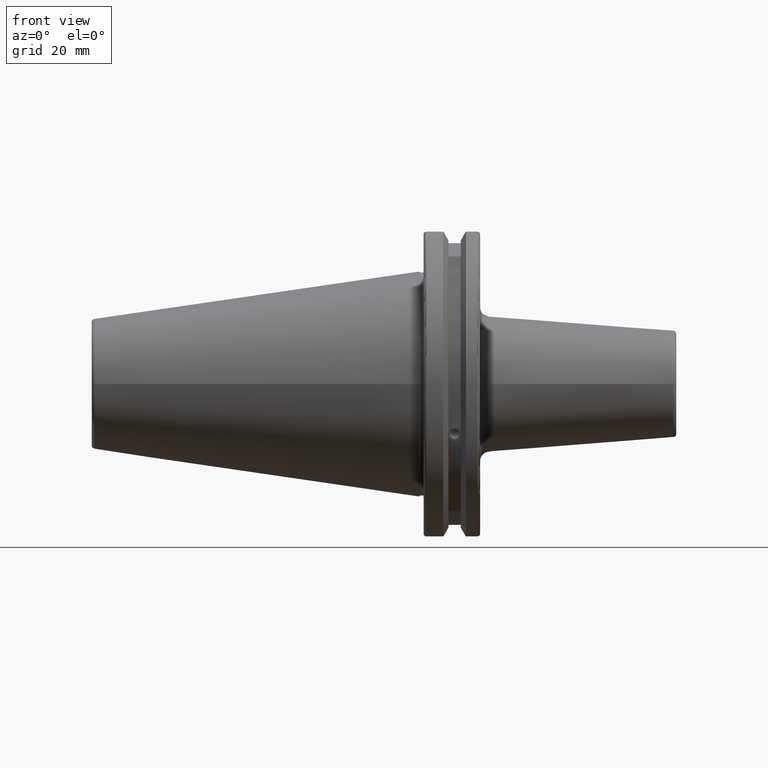
[diagram: clean part render]
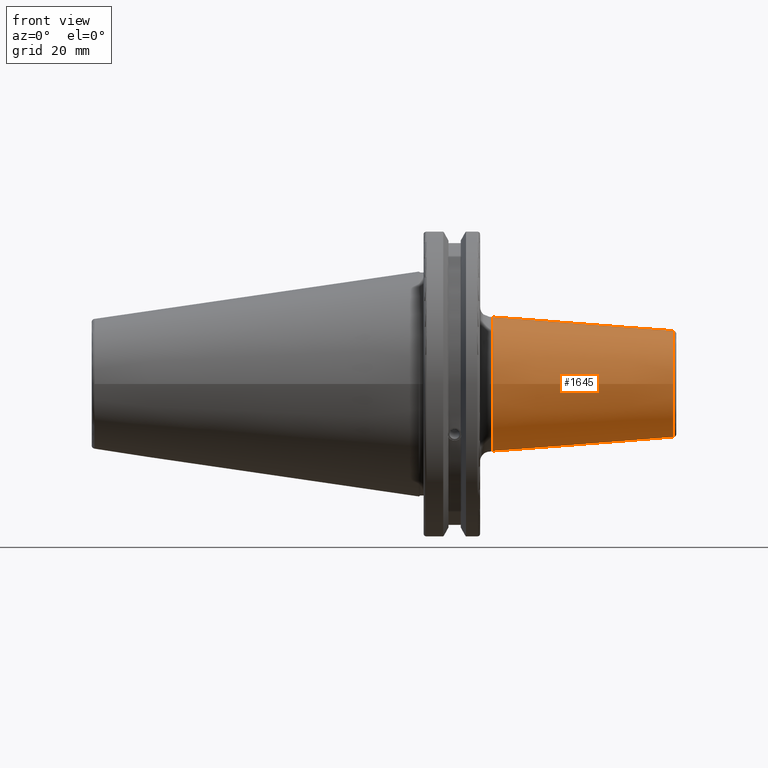
[diagram: same view with one face highlighted and labeled with its STEP entity id]
A machine part, front view. The second image highlights one B-rep face of the part: STEP entity #1645.
In plain terms, the highlighted conical surface has half-angle 4.5 deg.
Its self-contained STEP definition (entity closure, byte-faithful):
#75=CONICAL_SURFACE('',#1764,18.75,0.0785398163397447);
#90=LINE('',#2467,#184);
#184=VECTOR('',#1982,18.75);
#364=FACE_OUTER_BOUND('',#453,.T.);
#453=EDGE_LOOP('',(#1128,#1129,#1130,#1131,#1132,#1133,#1134));
#562=CIRCLE('',#1761,16.5725268420749);
#563=CIRCLE('',#1762,16.5725268420749);
#564=CIRCLE('',#1763,16.5725268420749);
#565=CIRCLE('',#1765,21.);
#566=CIRCLE('',#1766,21.);
#668=VERTEX_POINT('',#2458);
#669=VERTEX_POINT('',#2460);
#670=VERTEX_POINT('',#2462);
#671=VERTEX_POINT('',#2466);
#672=VERTEX_POINT('',#2468);
#855=EDGE_CURVE('',#668,#669,#562,.T.);
#856=EDGE_CURVE('',#669,#670,#563,.T.);
#857=EDGE_CURVE('',#670,#668,#564,.T.);
#858=EDGE_CURVE('',#669,#671,#90,.T.);
#859=EDGE_CURVE('',#671,#672,#565,.T.);
#860=EDGE_CURVE('',#672,#671,#566,.T.);
#1128=ORIENTED_EDGE('',*,*,#857,.F.);
#1129=ORIENTED_EDGE('',*,*,#856,.F.);
#1130=ORIENTED_EDGE('',*,*,#858,.T.);
#1131=ORIENTED_EDGE('',*,*,#859,.T.);
#1132=ORIENTED_EDGE('',*,*,#860,.T.);
#1133=ORIENTED_EDGE('',*,*,#858,.F.);
#1134=ORIENTED_EDGE('',*,*,#855,.F.);
#1645=ADVANCED_FACE('',(#364),#75,.T.);
#1761=AXIS2_PLACEMENT_3D('',#2461,#1974,#1975);
#1762=AXIS2_PLACEMENT_3D('',#2463,#1976,#1977);
#1763=AXIS2_PLACEMENT_3D('',#2464,#1978,#1979);
#1764=AXIS2_PLACEMENT_3D('',#2465,#1980,#1981);
#1765=AXIS2_PLACEMENT_3D('',#2469,#1983,#1984);
#1766=AXIS2_PLACEMENT_3D('',#2470,#1985,#1986);
#1974=DIRECTION('center_axis',(1.,0.,0.));
#1975=DIRECTION('ref_axis',(0.,-1.,3.06161699786838E-17));
#1976=DIRECTION('center_axis',(1.,0.,0.));
#1977=DIRECTION('ref_axis',(0.,-1.,3.06161699786838E-17));
#1978=DIRECTION('center_axis',(1.,0.,0.));
#1979=DIRECTION('ref_axis',(0.,-1.,3.06161699786838E-17));
#1980=DIRECTION('center_axis',(-1.,-1.65481711838876E-16,0.));
#1981=DIRECTION('ref_axis',(-2.40639498804217E-16,1.,0.));
#1982=DIRECTION('',(-0.996917333733128,-0.078459095727845,-9.6084680447101E-18));
#1983=DIRECTION('center_axis',(1.,1.65481711838876E-16,0.));
#1984=DIRECTION('ref_axis',(0.,0.,-1.));
#1985=DIRECTION('center_axis',(1.,1.65481711838876E-16,0.));
#1986=DIRECTION('ref_axis',(0.,0.,-1.));
#2458=CARTESIAN_POINT('',(79.0784590957279,3.46317087661733E-15,16.5725268420749));
#2460=CARTESIAN_POINT('',(79.0784590957279,-16.5725268420749,-2.02954919509306E-15));
#2461=CARTESIAN_POINT('Origin',(79.0784590957279,3.33066907387547E-15,-2.53693649386633E-15));
#2462=CARTESIAN_POINT('',(79.0784590957279,16.5725268420749,-1.01477459754653E-15));
#2463=CARTESIAN_POINT('Origin',(79.0784590957279,3.33066907387547E-15,-2.53693649386633E-15));
#2464=CARTESIAN_POINT('Origin',(79.0784590957279,3.33066907387547E-15,-2.53693649386633E-15));
#2465=CARTESIAN_POINT('Origin',(51.4110393436069,9.1426808896467E-16,0.));
#2466=CARTESIAN_POINT('',(22.8220786872137,-21.,-2.57175827820944E-15));
#2467=CARTESIAN_POINT('',(51.4110393436069,-18.75,-2.29621274840129E-15));
#2468=CARTESIAN_POINT('',(22.8220786872137,21.,0.));
#2469=CARTESIAN_POINT('Origin',(22.8220786872137,-3.81668206014955E-15,
0.));
#2470=CARTESIAN_POINT('Origin',(22.8220786872137,-3.81668206014955E-15,
0.));